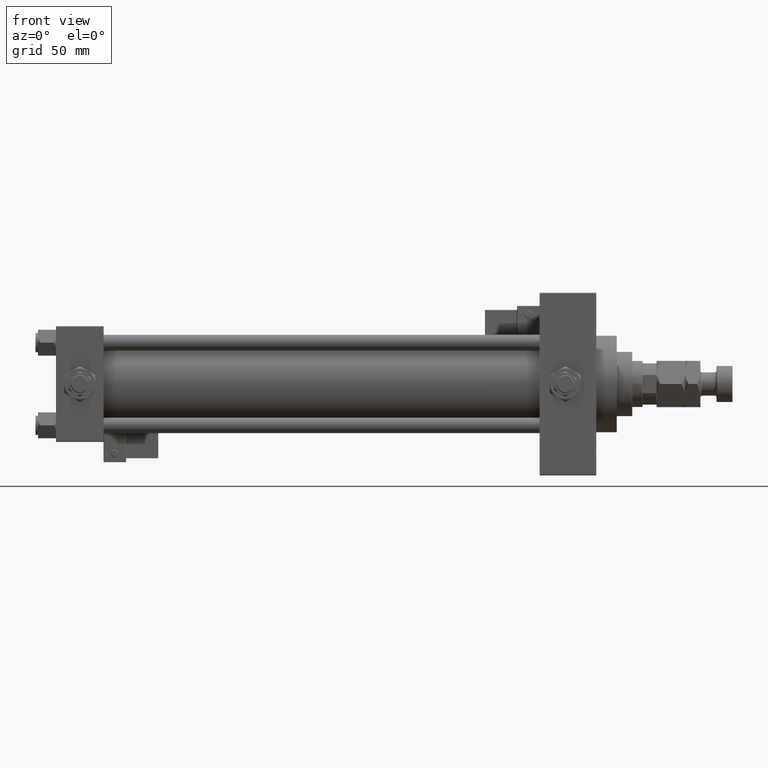
[diagram: clean part render]
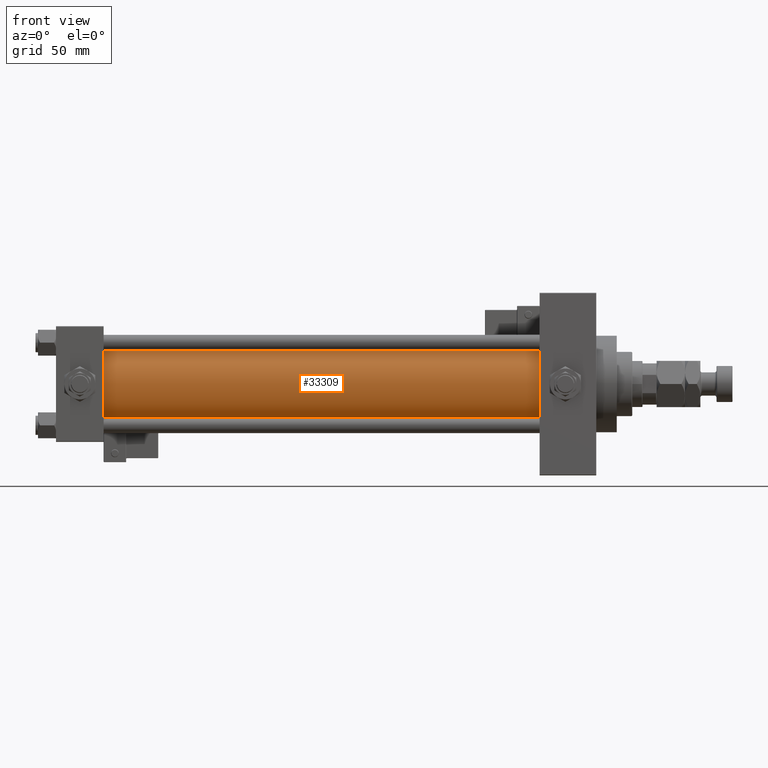
[diagram: same view with one face highlighted and labeled with its STEP entity id]
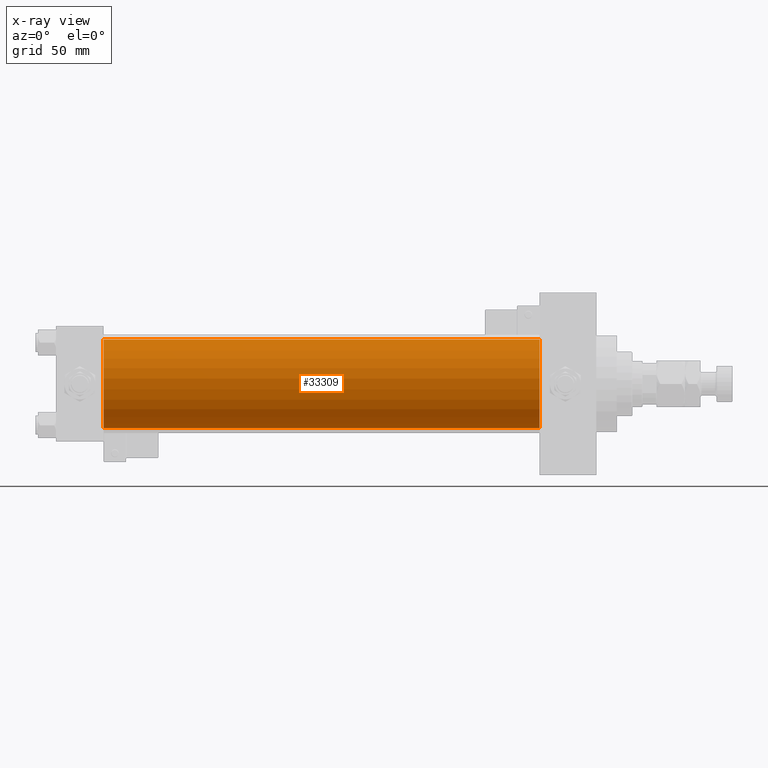
[diagram: x-ray of the same camera — body ghosted, the highlighted face saturated]
A machine part, front view. The second image highlights one B-rep face of the part: STEP entity #33309.
The next image is the same camera in x-ray: the body ghosted, the highlighted face saturated — about 0% of this face is hidden behind the body in this view.
In plain terms, the highlighted cylindrical surface (partial cylindrical patch) has radius 34.5 mm, axis along (-1, -0, -0).
Its self-contained STEP definition (entity closure, byte-faithful):
#6360 = VERTEX_POINT ( 'NONE', #33103 ) ;
#6544 = LINE ( 'NONE', #18119, #49947 ) ;
#6678 = CARTESIAN_POINT ( 'NONE',  ( 376.0000000000000000, -2.602085213965210642E-15, 34.50000000000000000 ) ) ;
#7548 = CARTESIAN_POINT ( 'NONE',  ( 376.0000000000000000, -2.602085213965210642E-15, 0.000000000000000000 ) ) ;
#7598 = CARTESIAN_POINT ( 'NONE',  ( 376.0000000000000000, -2.602085213965210642E-15, 34.50000000000000000 ) ) ;
#8706 = CIRCLE ( 'NONE', #35326, 34.50000000000000000 ) ;
#9620 = VERTEX_POINT ( 'NONE', #6678 ) ;
#9663 = VERTEX_POINT ( 'NONE', #41100 ) ;
#11567 = FACE_OUTER_BOUND ( 'NONE', #14270, .T. ) ;
#12147 = DIRECTION ( 'NONE',  ( 0.000000000000000000, 0.000000000000000000, 1.000000000000000000 ) ) ;
#14270 = EDGE_LOOP ( 'NONE', ( #37733, #47344, #27294, #31161 ) ) ;
#15661 = CARTESIAN_POINT ( 'NONE',  ( 36.99999999999997868, -2.602085213965210642E-15, 0.000000000000000000 ) ) ;
#15951 = DIRECTION ( 'NONE',  ( 0.000000000000000000, 0.000000000000000000, -1.000000000000000000 ) ) ;
#18119 = CARTESIAN_POINT ( 'NONE',  ( 376.0000000000000000, 1.622946243093158675E-15, -34.50000000000000000 ) ) ;
#18795 = EDGE_CURVE ( 'NONE', #6360, #46662, #6544, .T. ) ;
#18876 = EDGE_CURVE ( 'NONE', #9620, #6360, #8706, .T. ) ;
#19910 = DIRECTION ( 'NONE',  ( -1.000000000000000000, -0.000000000000000000, -0.000000000000000000 ) ) ;
#21747 = CIRCLE ( 'NONE', #27787, 34.50000000000000000 ) ;
#22021 = EDGE_CURVE ( 'NONE', #9663, #46662, #21747, .T. ) ;
#22054 = AXIS2_PLACEMENT_3D ( 'NONE', #7548, #19910, #36334 ) ;
#27294 = ORIENTED_EDGE ( 'NONE', *, *, #38016, .T. ) ;
#27787 = AXIS2_PLACEMENT_3D ( 'NONE', #15661, #32098, #12147 ) ;
#28023 = CYLINDRICAL_SURFACE ( 'NONE', #22054, 34.50000000000000000 ) ;
#31161 = ORIENTED_EDGE ( 'NONE', *, *, #22021, .T. ) ;
#32098 = DIRECTION ( 'NONE',  ( 1.000000000000000000, -0.000000000000000000, 0.000000000000000000 ) ) ;
#33103 = CARTESIAN_POINT ( 'NONE',  ( 376.0000000000000000, 1.622946243093158675E-15, -34.50000000000000000 ) ) ;
#33309 = ADVANCED_FACE ( 'NONE', ( #11567 ), #28023, .T. ) ;
#34030 = DIRECTION ( 'NONE',  ( -1.000000000000000000, -0.000000000000000000, -0.000000000000000000 ) ) ;
#35326 = AXIS2_PLACEMENT_3D ( 'NONE', #52523, #51982, #15951 ) ;
#36334 = DIRECTION ( 'NONE',  ( 0.000000000000000000, 0.000000000000000000, 1.000000000000000000 ) ) ;
#37733 = ORIENTED_EDGE ( 'NONE', *, *, #18795, .F. ) ;
#38016 = EDGE_CURVE ( 'NONE', #9620, #9663, #40670, .T. ) ;
#40670 = LINE ( 'NONE', #7598, #42857 ) ;
#41100 = CARTESIAN_POINT ( 'NONE',  ( 36.99999999999997868, -2.602085213965210642E-15, 34.50000000000000000 ) ) ;
#42857 = VECTOR ( 'NONE', #48744, 1000.000000000000000 ) ;
#45223 = CARTESIAN_POINT ( 'NONE',  ( 36.99999999999997868, 1.622946243093158675E-15, -34.50000000000000000 ) ) ;
#46662 = VERTEX_POINT ( 'NONE', #45223 ) ;
#47344 = ORIENTED_EDGE ( 'NONE', *, *, #18876, .F. ) ;
#48744 = DIRECTION ( 'NONE',  ( -1.000000000000000000, -0.000000000000000000, -0.000000000000000000 ) ) ;
#49947 = VECTOR ( 'NONE', #34030, 1000.000000000000000 ) ;
#51982 = DIRECTION ( 'NONE',  ( 1.000000000000000000, 0.000000000000000000, 0.000000000000000000 ) ) ;
#52523 = CARTESIAN_POINT ( 'NONE',  ( 376.0000000000000000, -2.602085213965210642E-15, 0.000000000000000000 ) ) ;